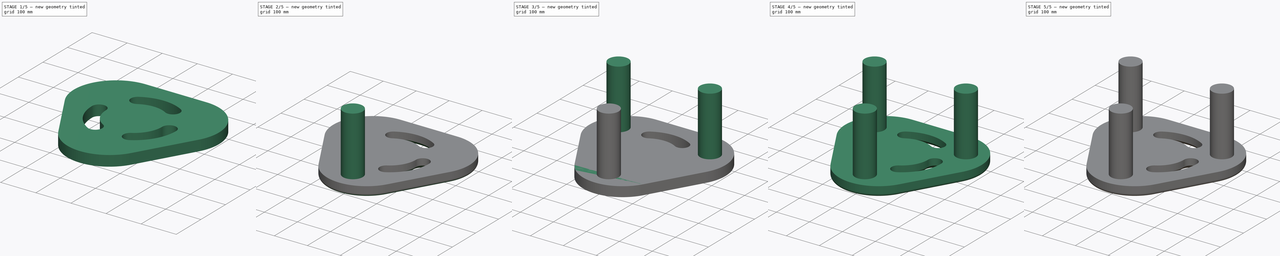
[diagram: build sequence overview — one tinted view per stage of 5, left to right]
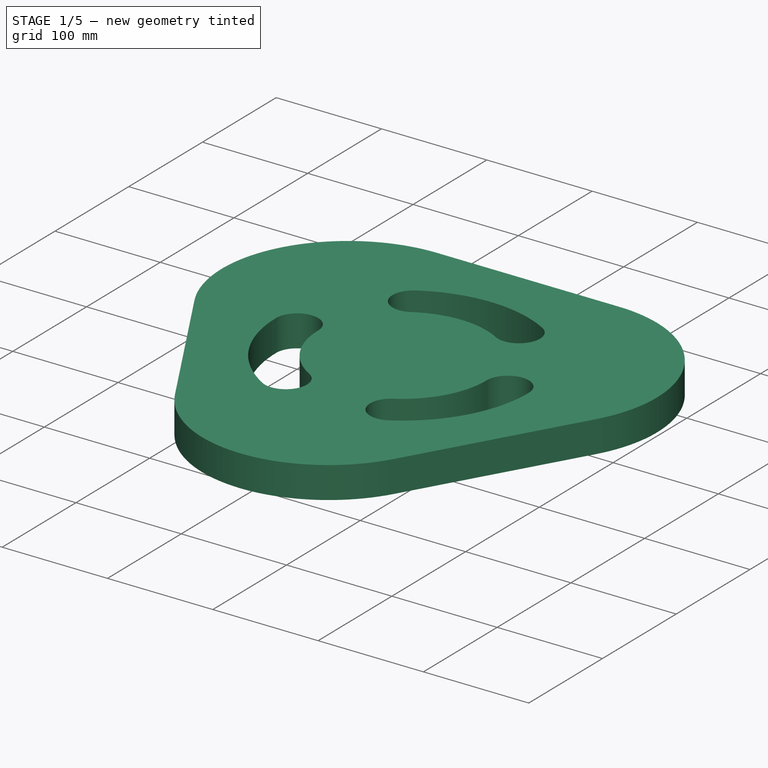
[diagram: stage 1 of 5 — iso view after this stage's code; geometry added in this stage tinted green]
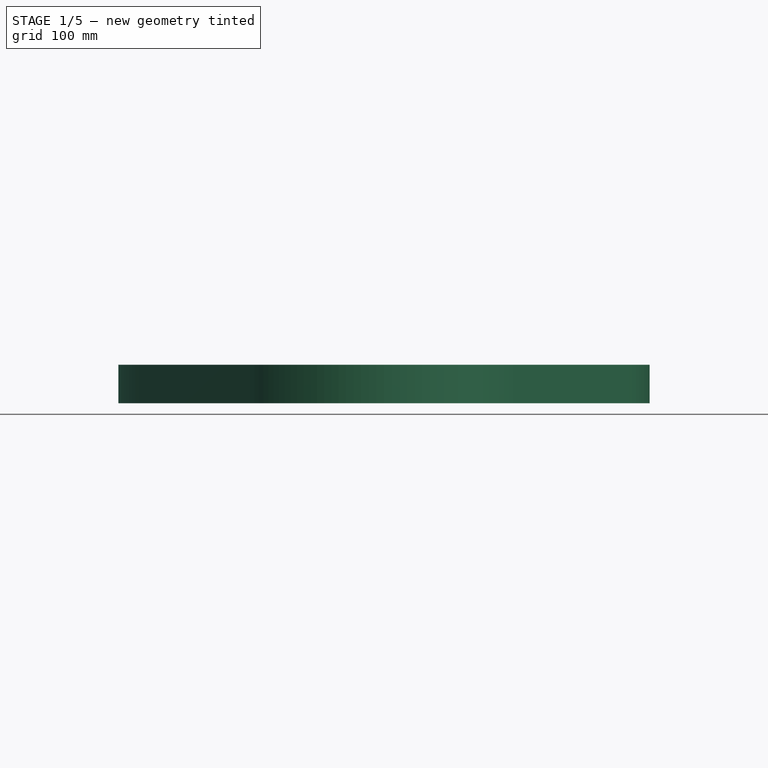
[diagram: stage 1 of 5 — front view after this stage's code; geometry added in this stage tinted green]
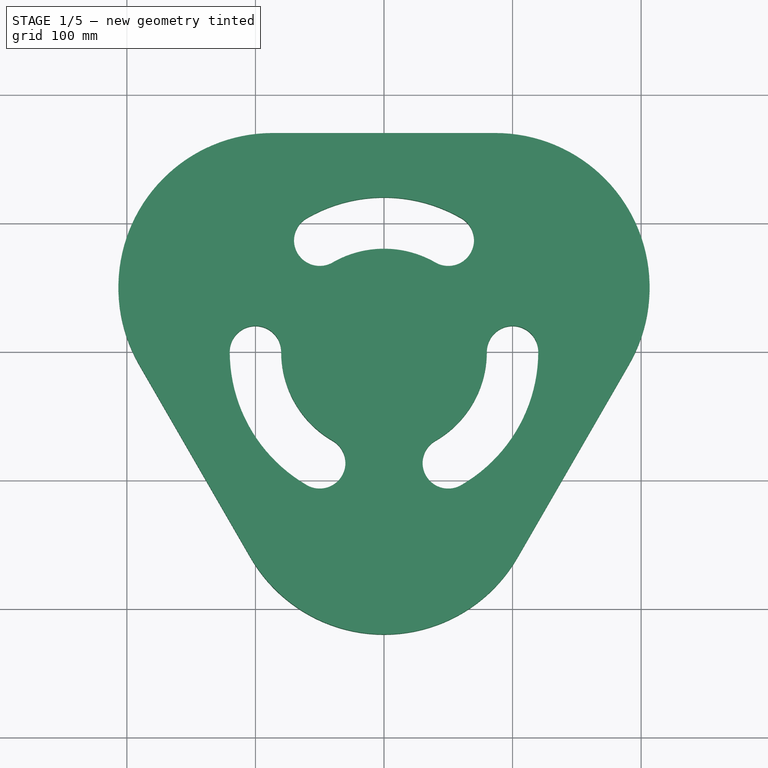
[diagram: stage 1 of 5 — top view after this stage's code; geometry added in this stage tinted green]
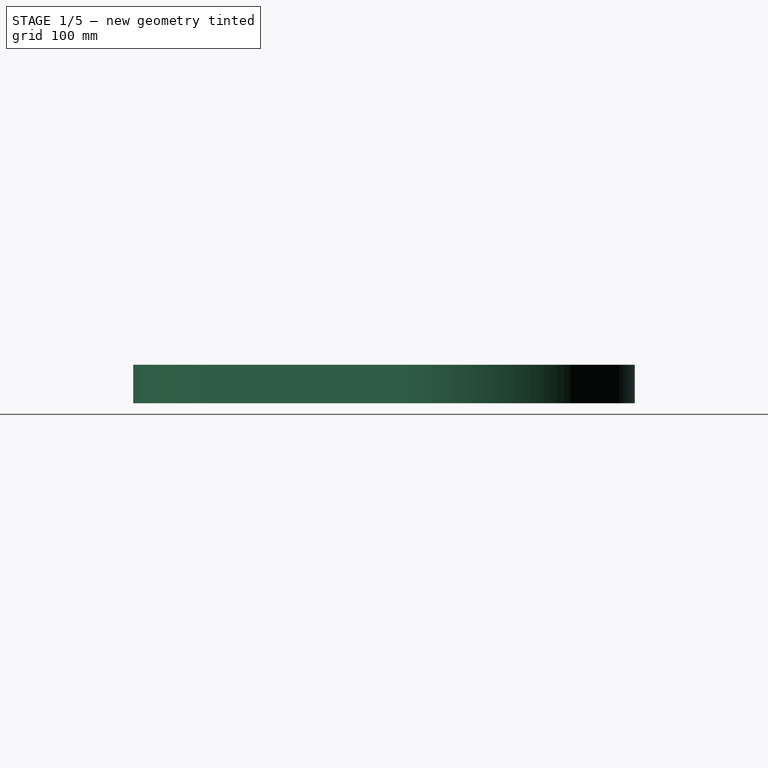
[diagram: stage 1 of 5 — right view after this stage's code; geometry added in this stage tinted green]
FCSTD DOCUMENT  (FreeCAD 0.19R24291 (Git))
Label: round_triangle_demo
License: All rights reserved
LicenseURL: http://en.wikipedia.org/wiki/All_rights_reserved
objects: Sketcher::SketchObject×7, PartDesign::Pad×4, PartDesign::PolarPattern×4, PartDesign::Pocket×3, PartDesign::Fillet×2, PartDesign::Chamfer×2, PartDesign::Body×1
note: 34 computed .brp shape members not serialized (recipe doc carries the construction recipe); baked Part::Feature solids carry a one-line shape summary decoded from their .brp

FEATURE [PartDesign::Body] Body
  Group = -> [Sketch,Pad,Sketch001,Pocket,PolarPattern,Fillet,Chamfer,Sketch002,Pad001,PolarPattern001,Sketch003,Pocket001]
  Origin = -> Origin
  Tip = -> Pocket001
FEATURE [Sketcher::SketchObject] Sketch005
  FullyConstrained = false
  MapMode = 5
  Support = -> [XY_Plane001]
  sketch-geometry (9):
    g0: Circle CenterX=0 CenterY=0 CenterZ=0 NormalX=0 NormalY=0 NormalZ=1 AngleXU=0 Radius=100
    g1: LineSegment StartX=190.526 StartY=-10 StartZ=0 EndX=103.923 EndY=-160 EndZ=0
    g2: LineSegment StartX=-86.6025 StartY=170 StartZ=0 EndX=86.6025 EndY=170 EndZ=0
    g3: LineSegment StartX=-103.923 StartY=-160 StartZ=0 EndX=-190.526 EndY=-10 EndZ=0
    g4: LineSegment StartX=0 StartY=0 StartZ=0 EndX=158.55 EndY=91.5386 EndZ=0
    g5: LineSegment StartX=0 StartY=0 StartZ=0 EndX=-158.55 EndY=91.5386 EndZ=0
    g6: ArcOfCircle CenterX=86.6025 CenterY=50 CenterZ=0 NormalX=0 NormalY=0 NormalZ=1 AngleXU=0 Radius=120 StartAngle=5.75959 EndAngle=7.85398
    g7: ArcOfCircle CenterX=-86.6025 CenterY=50 CenterZ=0 NormalX=0 NormalY=0 NormalZ=1 AngleXU=0 Radius=120 StartAngle=1.5708 EndAngle=3.66519
    g8: ArcOfCircle CenterX=0 CenterY=-100 CenterZ=0 NormalX=0 NormalY=0 NormalZ=1 AngleXU=0 Radius=120 StartAngle=3.66519 EndAngle=5.75959
  constraints (30):
    c: Coincident(g0,g-1)
    c: Radius(g0) = 100
    c: Coincident(g4,g-1)
    c: Coincident(g5,g4)
    c: Angle(g4,g-2) = 1.0472
    c: Angle(g-2,g5) = 1.0472
    c: Equal(g5,g4)
    c: PointOnObject(g6,g0)
    c: PointOnObject(g6,g4)
    c: Angle(g6) = 2.0944
    c: Radius(g6) = 120
    c: Tangent(g2,g6) = 1.5708
    c: Equal(g6,g7)
    c: PointOnObject(g7,g0)
    c: PointOnObject(g7,g5)
    c: Angle(g7) = 2.0944
    c: Coincident(g2,g7)
    c: Coincident(g1,g6)
    c: Coincident(g1,g8)
    c: Coincident(g8,g3)
    c: Coincident(g3,g7)
    c: Angle(g8) = 2.0944
    c: PointOnObject(g8,g-2)
    c: PointOnObject(g8,g0)
    c: Coincident(g6,g2)
    c: Tangent(g7,g2) = 1.5708
    c: Tangent(g8,g1) = 1.5708
    c: Tangent(g8,g3) = 1.5708
    c: Tangent(g3,g7) = 1.5708
    c: Tangent(g1,g6) = 1.5708
FEATURE [PartDesign::Pad] Pad003
  Direction = (1,1,1)
  Length = 30
  Length2 = 100
  Profile = -> Sketch005
  Refine = true
  Type = 0
FEATURE [Sketcher::SketchObject] Sketch004
  FullyConstrained = true
  MapMode = 5
  Placement = pos=(0,0,0) rot=(1,0,0;3.14159rad)
  Support = -> [Pad003]
  sketch-geometry (7):
    g0: Circle CenterX=0 CenterY=0 CenterZ=0 NormalX=0 NormalY=0 NormalZ=1 AngleXU=0 Radius=100
    g1: LineSegment StartX=0 StartY=0 StartZ=0 EndX=60 EndY=-103.923 EndZ=0
    g2: LineSegment StartX=0 StartY=0 StartZ=0 EndX=-60 EndY=-103.923 EndZ=0
    g3: ArcOfCircle CenterX=0 CenterY=0 CenterZ=0 NormalX=0 NormalY=0 NormalZ=1 AngleXU=0 Radius=80 StartAngle=4.18879 EndAngle=5.23599
    g4: ArcOfCircle CenterX=0 CenterY=0 CenterZ=0 NormalX=0 NormalY=0 NormalZ=1 AngleXU=0 Radius=120 StartAngle=4.18879 EndAngle=5.23599
    g5: ArcOfCircle CenterX=-50 CenterY=-86.6025 CenterZ=0 NormalX=0 NormalY=0 NormalZ=1 AngleXU=0 Radius=20 StartAngle=1.0472 EndAngle=4.18879
    g6: ArcOfCircle CenterX=50 CenterY=-86.6025 CenterZ=0 NormalX=0 NormalY=0 NormalZ=1 AngleXU=0 Radius=20 StartAngle=5.23599 EndAngle=8.37758
  constraints (18):
    c: Coincident(g-1,g0)
    c: Radius(g0) = 100
    c: Coincident(g1,g0)
    c: Coincident(g2,g0)
    c: Angle(g1,g-2,g0) = 2.61799
    c: Distance(g1) = 120
    c: Equal(g2,g1)
    c: Angle(g-2,g2) = 2.61799
    c: Tangent(g4,g6) = -1.5708
    c: Tangent(g3,g6) = 1.5708
    c: Tangent(g3,g5) = 1.5708
    c: Tangent(g5,g4) = -1.5708
    c: Coincident(g3,g-1)
    c: Coincident(g4,g3)
    c: Radius(g3) = 80
    c: Radius(g4) = 120
    c: PointOnObject(g4,g2)
    c: PointOnObject(g3,g1)
FEATURE [PartDesign::Pocket] Pocket002
  BaseFeature = -> Pad003
  Length = 20
  Length2 = 100
  Profile = -> Sketch004
  Refine = true
  Type = 1
FEATURE [PartDesign::PolarPattern] PolarPattern002
  Angle = 360
  Axis = -> Sketch004 [N_Axis]
  BaseFeature = -> Pocket002
  Occurrences = 3
  Originals = -> [Pocket002]
  Refine = true
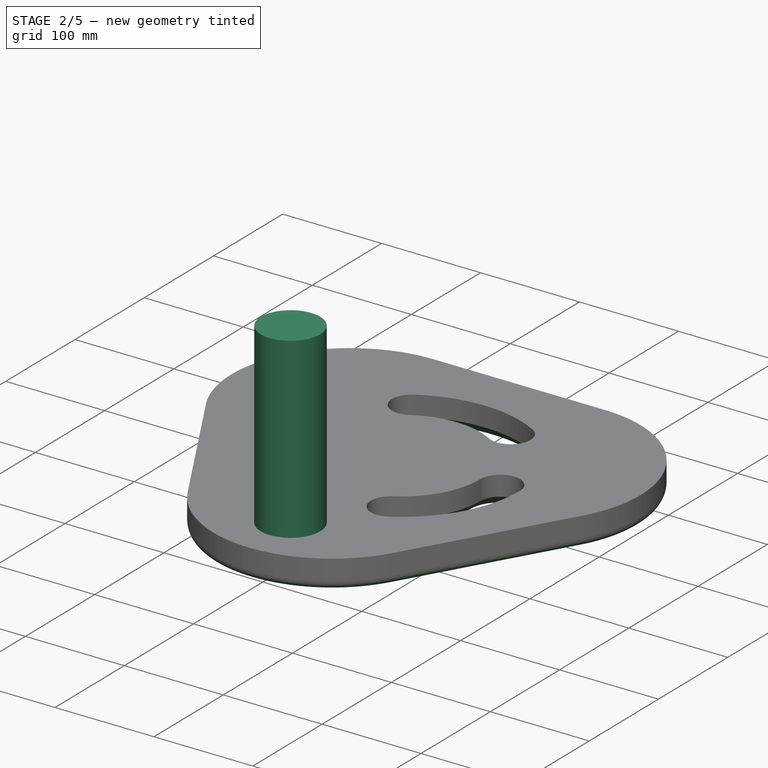
[diagram: stage 2 of 5 — iso view after this stage's code; geometry added in this stage tinted green]
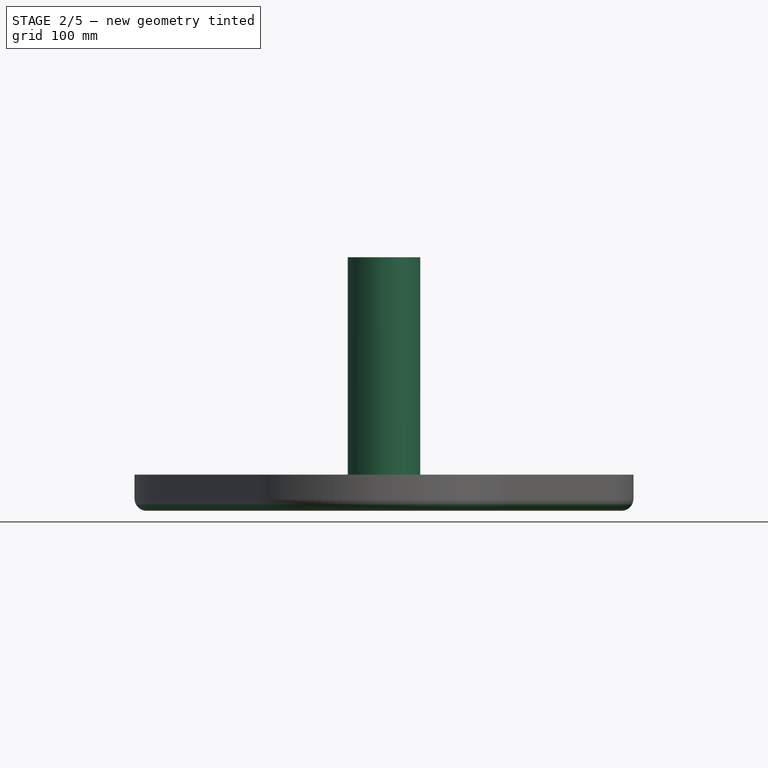
[diagram: stage 2 of 5 — front view after this stage's code; geometry added in this stage tinted green]
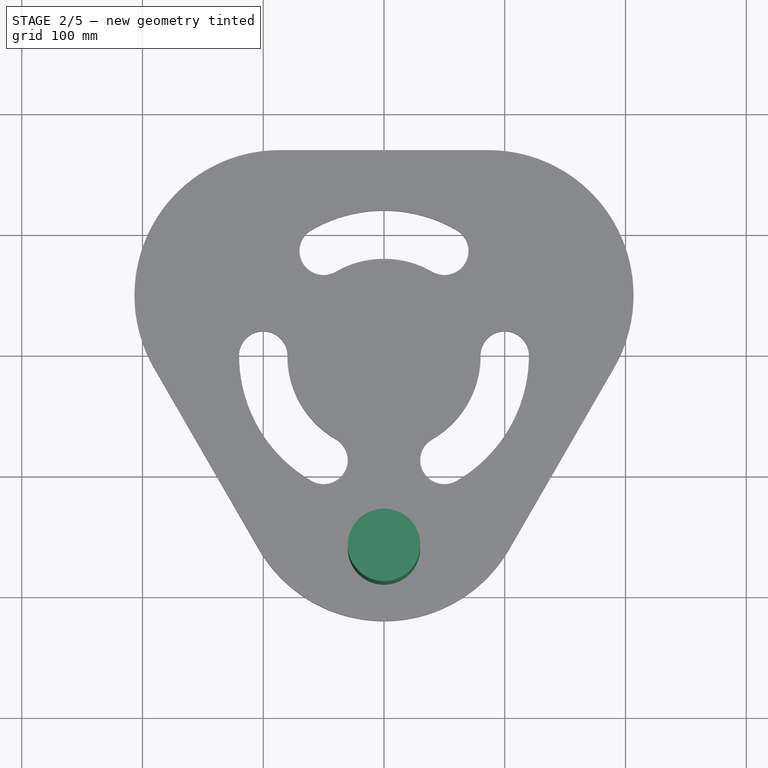
[diagram: stage 2 of 5 — top view after this stage's code; geometry added in this stage tinted green]
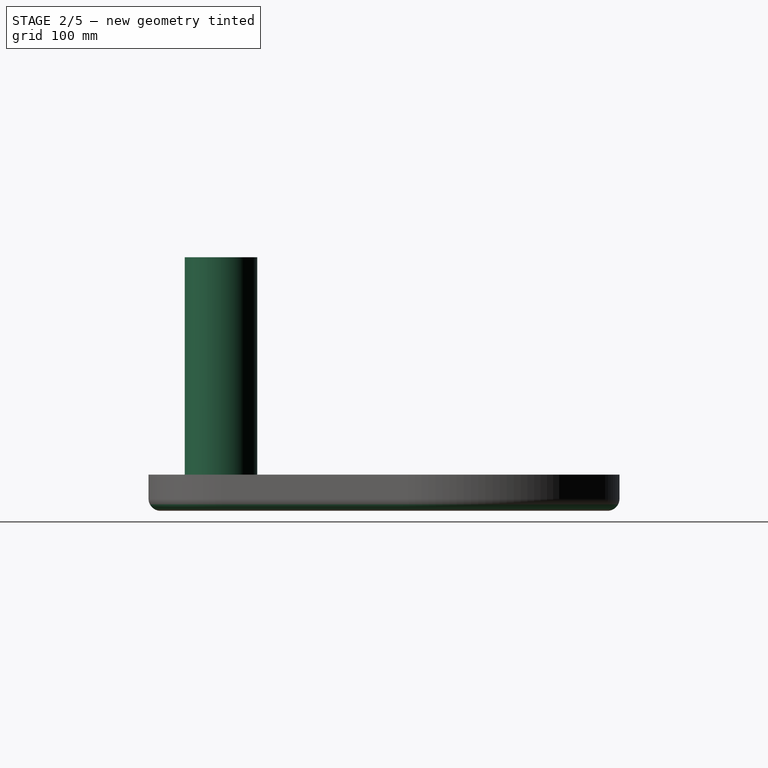
[diagram: stage 2 of 5 — right view after this stage's code; geometry added in this stage tinted green]
FEATURE [PartDesign::Fillet] Fillet001
  Base = -> PolarPattern002 [Edge6,Edge13,Edge9]
  BaseFeature = -> PolarPattern002
  Radius = 10
  Refine = true
  SupportTransform = false
FEATURE [PartDesign::Chamfer] Chamfer001
  Angle = 45
  Base = -> Fillet001 [Edge39,Edge40,Edge47,Edge48,Edge45,Edge43]
  BaseFeature = -> Fillet001
  ChamferType = 0
  FlipDirection = false
  Refine = true
  Size = 10
  Size2 = 1
  SupportTransform = false
FEATURE [Sketcher::SketchObject] Sketch006
  FullyConstrained = true
  MapMode = 5
  Placement = pos=(0,0,30) rot=(0,0,1;0rad)
  Support = -> [Chamfer001]
  sketch-geometry (1):
    g0: Circle CenterX=0 CenterY=-160 CenterZ=0 NormalX=0 NormalY=0 NormalZ=1 AngleXU=0 Radius=30
  constraints (3):
    c: PointOnObject(g0,g-2)
    c: DistanceY(g0,g-1) = 160
    c: Radius(g0) = 30
FEATURE [PartDesign::Pad] Pad002
  BaseFeature = -> Chamfer001
  Direction = (1,1,1)
  Length = 180
  Length2 = 100
  Profile = -> Sketch006
  Refine = true
  Type = 0
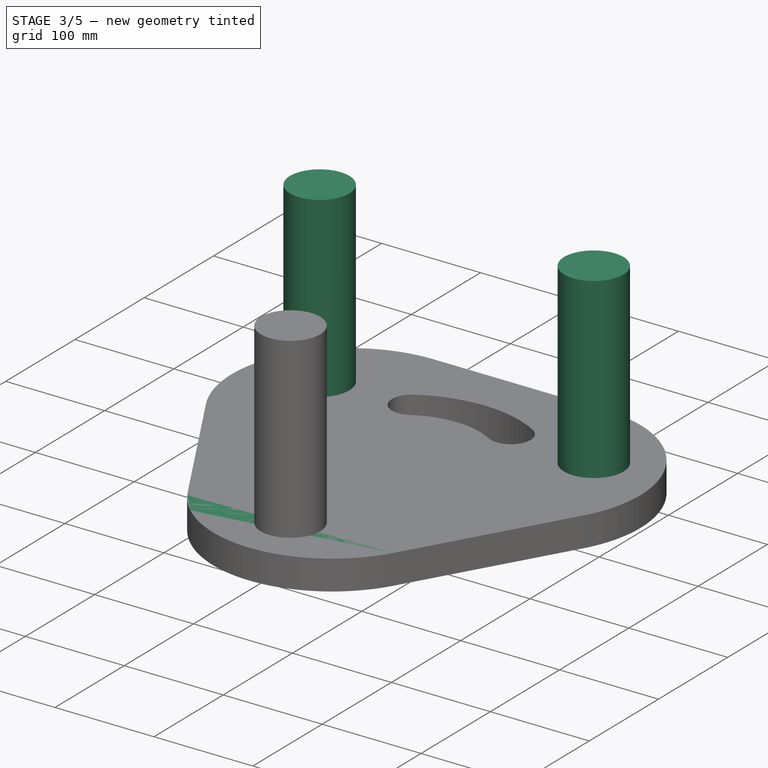
[diagram: stage 3 of 5 — iso view after this stage's code; geometry added in this stage tinted green]
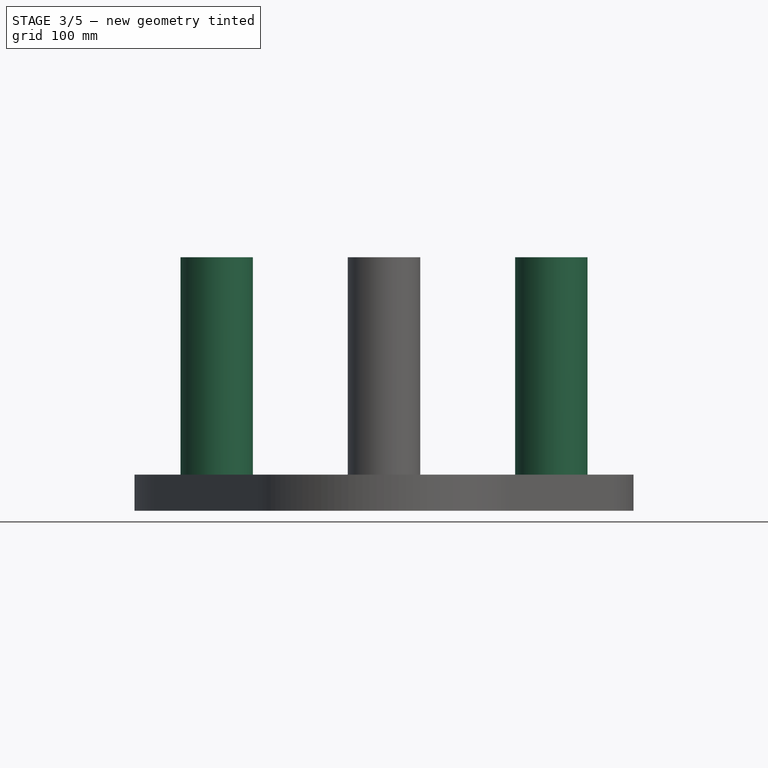
[diagram: stage 3 of 5 — front view after this stage's code; geometry added in this stage tinted green]
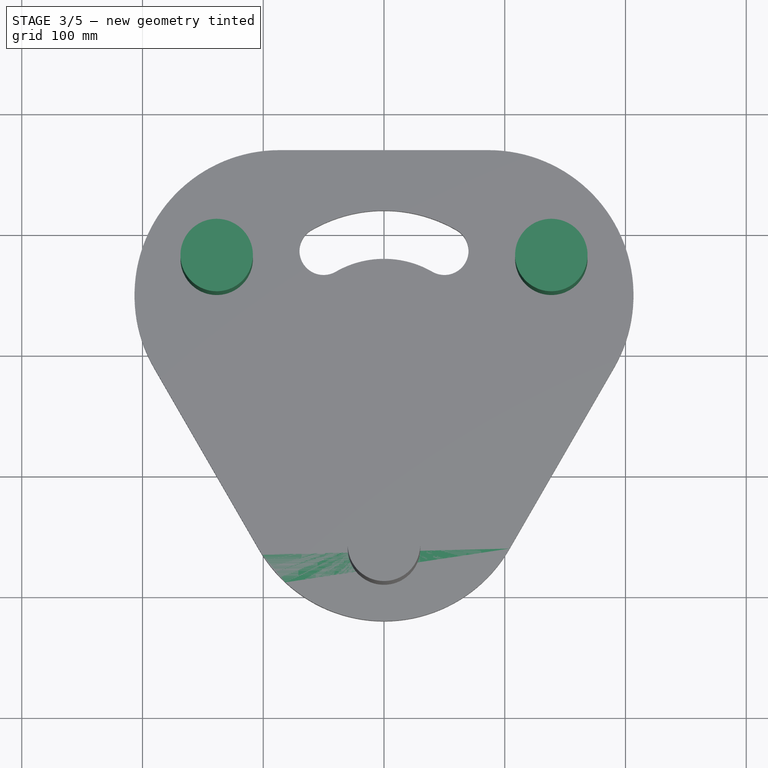
[diagram: stage 3 of 5 — top view after this stage's code; geometry added in this stage tinted green]
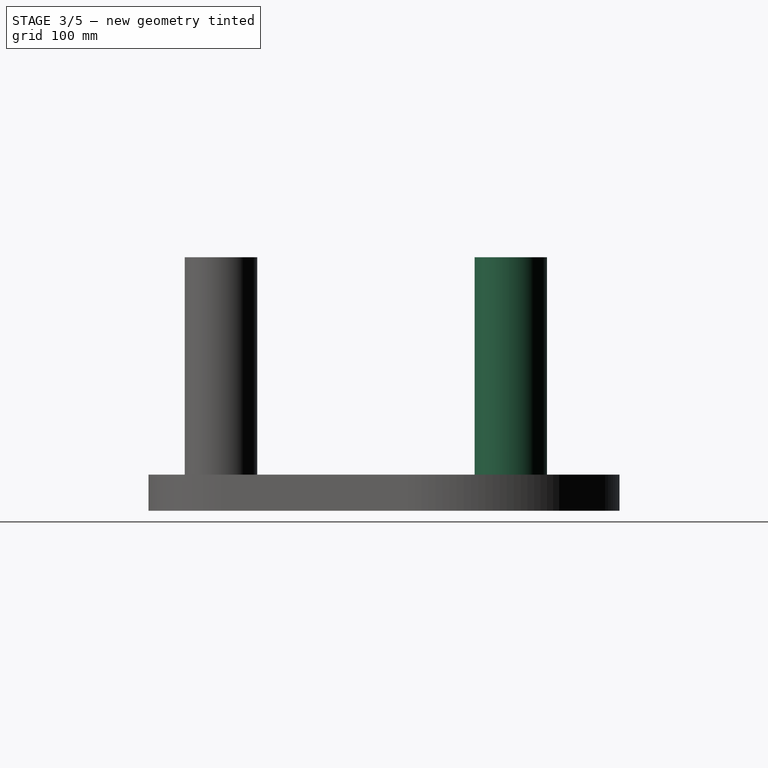
[diagram: stage 3 of 5 — right view after this stage's code; geometry added in this stage tinted green]
FEATURE [Sketcher::SketchObject] Sketch
  FullyConstrained = false
  MapMode = 5
  Support = -> [XY_Plane]
  sketch-geometry (9):
    g0: Circle CenterX=0 CenterY=0 CenterZ=0 NormalX=0 NormalY=0 NormalZ=1 AngleXU=0 Radius=100
    g1: LineSegment StartX=190.526 StartY=-10 StartZ=0 EndX=103.923 EndY=-160 EndZ=0
    g2: LineSegment StartX=-86.6025 StartY=170 StartZ=0 EndX=86.6025 EndY=170 EndZ=0
    g3: LineSegment StartX=-103.923 StartY=-160 StartZ=0 EndX=-190.526 EndY=-10 EndZ=0
    g4: LineSegment StartX=0 StartY=0 StartZ=0 EndX=158.55 EndY=91.5386 EndZ=0
    g5: LineSegment StartX=0 StartY=0 StartZ=0 EndX=-158.55 EndY=91.5386 EndZ=0
    g6: ArcOfCircle CenterX=86.6025 CenterY=50 CenterZ=0 NormalX=0 NormalY=0 NormalZ=1 AngleXU=0 Radius=120 StartAngle=5.75959 EndAngle=7.85398
    g7: ArcOfCircle CenterX=-86.6025 CenterY=50 CenterZ=0 NormalX=0 NormalY=0 NormalZ=1 AngleXU=0 Radius=120 StartAngle=1.5708 EndAngle=3.66519
    g8: ArcOfCircle CenterX=0 CenterY=-100 CenterZ=0 NormalX=0 NormalY=0 NormalZ=1 AngleXU=0 Radius=120 StartAngle=3.66519 EndAngle=5.75959
  constraints (30):
    c: Coincident(g0,g-1)
    c: Radius(g0) = 100
    c: Coincident(g4,g-1)
    c: Coincident(g5,g4)
    c: Angle(g4,g-2) = 1.0472
    c: Angle(g-2,g5) = 1.0472
    c: Equal(g5,g4)
    c: PointOnObject(g6,g0)
    c: PointOnObject(g6,g4)
    c: Angle(g6) = 2.0944
    c: Radius(g6) = 120
    c: Tangent(g2,g6) = 1.5708
    c: Equal(g6,g7)
    c: PointOnObject(g7,g0)
    c: PointOnObject(g7,g5)
    c: Angle(g7) = 2.0944
    c: Coincident(g2,g7)
    c: Coincident(g1,g6)
    c: Coincident(g1,g8)
    c: Coincident(g8,g3)
    c: Coincident(g3,g7)
    c: Angle(g8) = 2.0944
    c: PointOnObject(g8,g-2)
    c: PointOnObject(g8,g0)
    c: Coincident(g6,g2)
    c: Tangent(g7,g2) = 1.5708
    c: Tangent(g8,g1) = 1.5708
    c: Tangent(g8,g3) = 1.5708
    c: Tangent(g3,g7) = 1.5708
    c: Tangent(g1,g6) = 1.5708
FEATURE [PartDesign::Pad] Pad
  Direction = (1,1,1)
  Length = 30
  Length2 = 100
  Profile = -> Sketch
  Refine = true
  Type = 0
FEATURE [Sketcher::SketchObject] Sketch001
  FullyConstrained = true
  MapMode = 5
  Placement = pos=(0,0,0) rot=(1,0,0;3.14159rad)
  Support = -> [Pad]
  sketch-geometry (7):
    g0: Circle CenterX=0 CenterY=0 CenterZ=0 NormalX=0 NormalY=0 NormalZ=1 AngleXU=0 Radius=100
    g1: LineSegment StartX=0 StartY=0 StartZ=0 EndX=60 EndY=-103.923 EndZ=0
    g2: LineSegment StartX=0 StartY=0 StartZ=0 EndX=-60 EndY=-103.923 EndZ=0
    g3: ArcOfCircle CenterX=0 CenterY=0 CenterZ=0 NormalX=0 NormalY=0 NormalZ=1 AngleXU=0 Radius=80 StartAngle=4.18879 EndAngle=5.23599
    g4: ArcOfCircle CenterX=0 CenterY=0 CenterZ=0 NormalX=0 NormalY=0 NormalZ=1 AngleXU=0 Radius=120 StartAngle=4.18879 EndAngle=5.23599
    g5: ArcOfCircle CenterX=-50 CenterY=-86.6025 CenterZ=0 NormalX=0 NormalY=0 NormalZ=1 AngleXU=0 Radius=20 StartAngle=1.0472 EndAngle=4.18879
    g6: ArcOfCircle CenterX=50 CenterY=-86.6025 CenterZ=0 NormalX=0 NormalY=0 NormalZ=1 AngleXU=0 Radius=20 StartAngle=5.23599 EndAngle=8.37758
  constraints (18):
    c: Coincident(g-1,g0)
    c: Radius(g0) = 100
    c: Coincident(g1,g0)
    c: Coincident(g2,g0)
    c: Angle(g1,g-2,g0) = 2.61799
    c: Distance(g1) = 120
    c: Equal(g2,g1)
    c: Angle(g-2,g2) = 2.61799
    c: Tangent(g4,g6) = -1.5708
    c: Tangent(g3,g6) = 1.5708
    c: Tangent(g3,g5) = 1.5708
    c: Tangent(g5,g4) = -1.5708
    c: Coincident(g3,g-1)
    c: Coincident(g4,g3)
    c: Radius(g3) = 80
    c: Radius(g4) = 120
    c: PointOnObject(g4,g2)
    c: PointOnObject(g3,g1)
FEATURE [PartDesign::Pocket] Pocket
  BaseFeature = -> Pad
  Length = 20
  Length2 = 100
  Profile = -> Sketch001
  Refine = true
  Type = 1
FEATURE [PartDesign::PolarPattern] PolarPattern003
  Angle = 360
  Axis = -> Sketch006 [N_Axis]
  BaseFeature = -> Pad002
  Occurrences = 3
  Originals = -> [Pad002]
  Refine = true
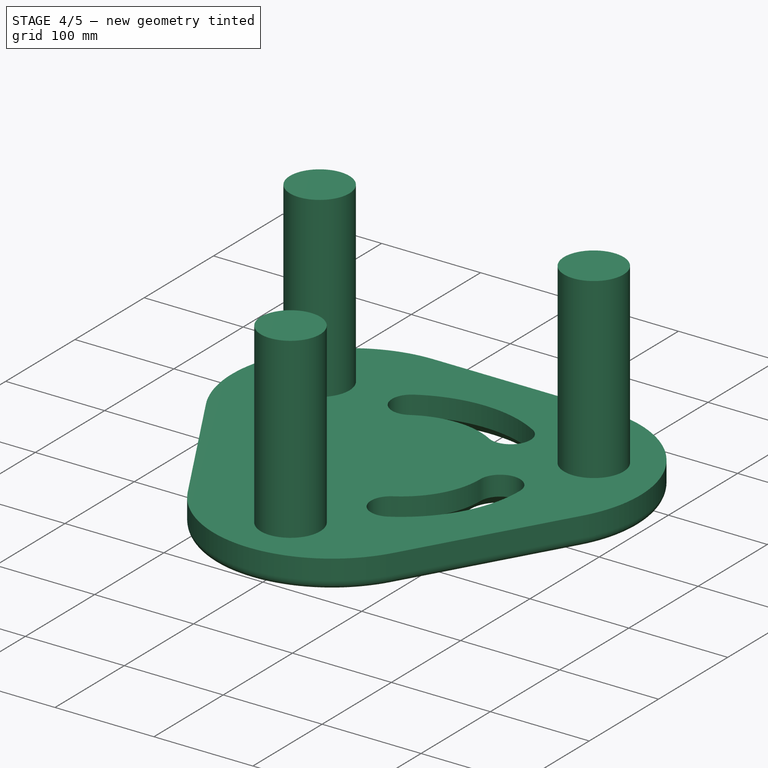
[diagram: stage 4 of 5 — iso view after this stage's code; geometry added in this stage tinted green]
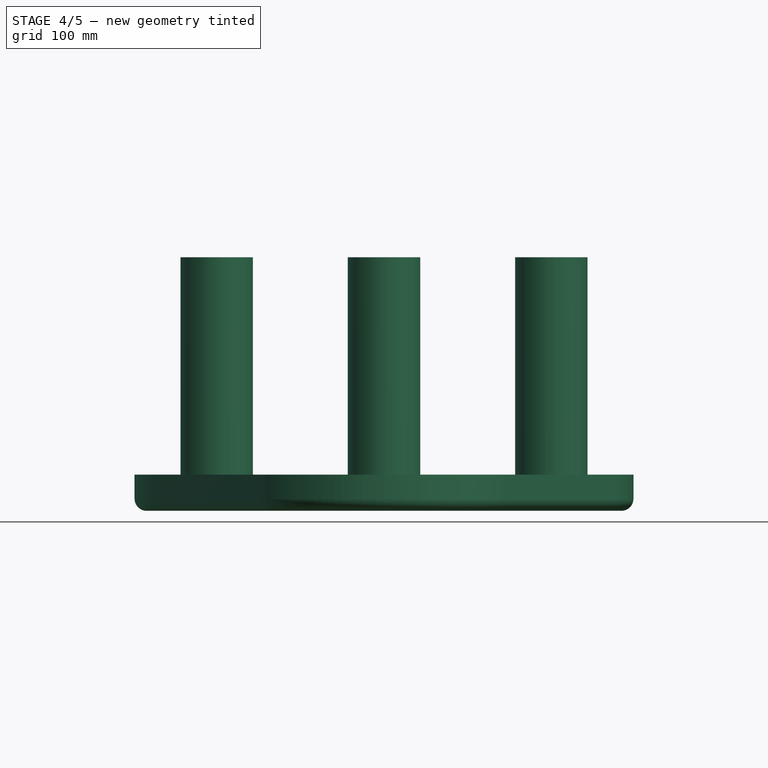
[diagram: stage 4 of 5 — front view after this stage's code; geometry added in this stage tinted green]
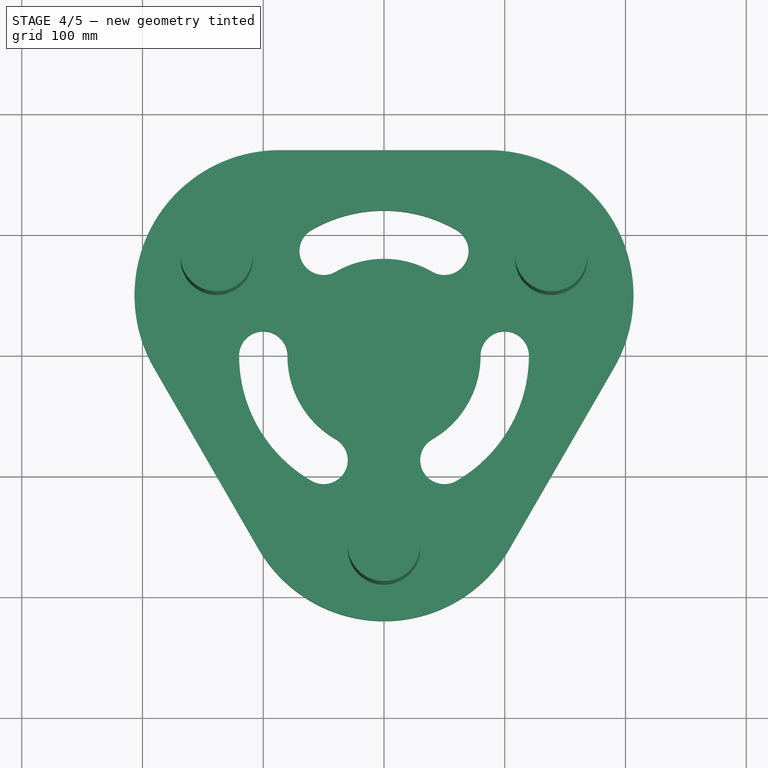
[diagram: stage 4 of 5 — top view after this stage's code; geometry added in this stage tinted green]
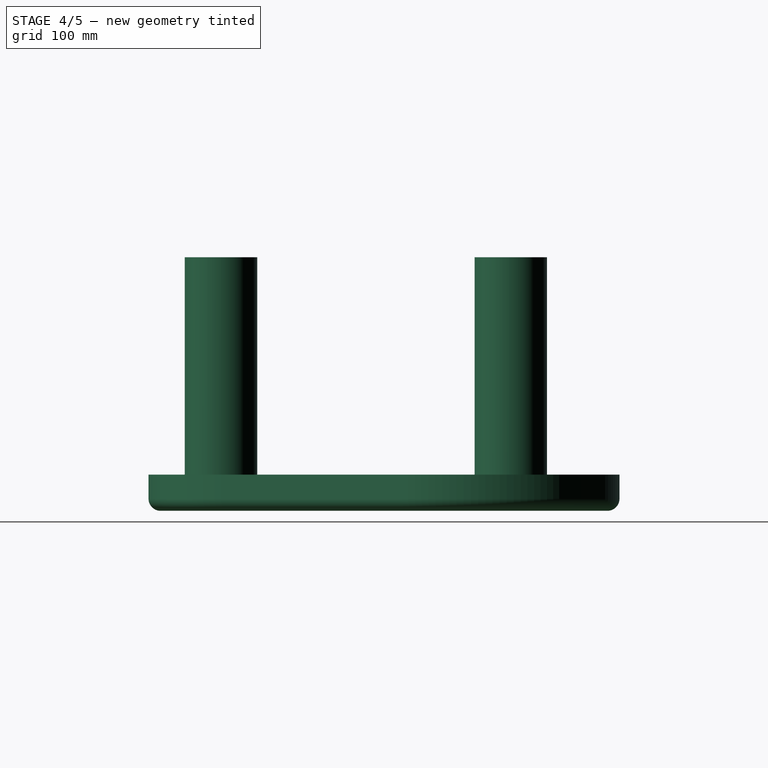
[diagram: stage 4 of 5 — right view after this stage's code; geometry added in this stage tinted green]
FEATURE [PartDesign::PolarPattern] PolarPattern
  Angle = 360
  Axis = -> Sketch001 [N_Axis]
  BaseFeature = -> Pocket
  Occurrences = 3
  Originals = -> [Pocket]
  Refine = true
FEATURE [PartDesign::Fillet] Fillet
  Base = -> PolarPattern [Edge6,Edge13,Edge9]
  BaseFeature = -> PolarPattern
  Radius = 10
  Refine = true
  SupportTransform = false
FEATURE [PartDesign::Chamfer] Chamfer
  Angle = 45
  Base = -> Fillet [Edge39,Edge40,Edge47,Edge48,Edge45,Edge43]
  BaseFeature = -> Fillet
  ChamferType = 0
  FlipDirection = false
  Refine = true
  Size = 10
  Size2 = 1
  SupportTransform = false
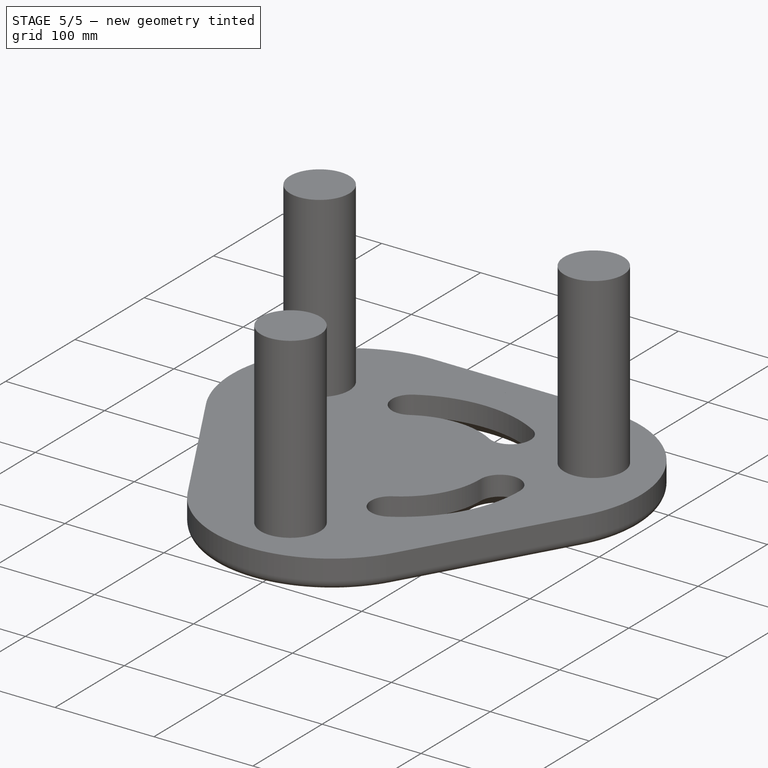
[diagram: stage 5 of 5 — iso view after this stage's code; geometry added in this stage tinted green]
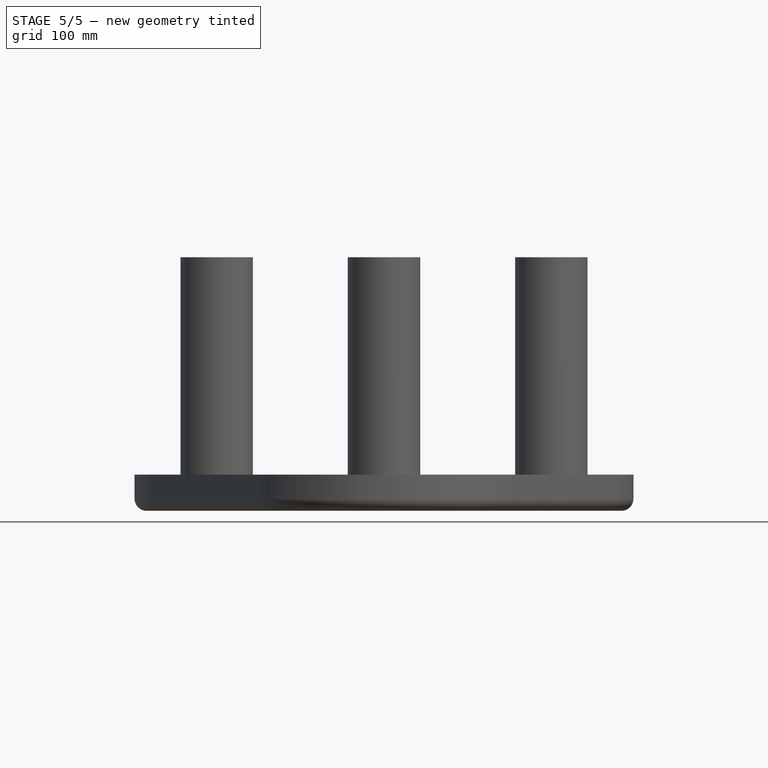
[diagram: stage 5 of 5 — front view after this stage's code; geometry added in this stage tinted green]
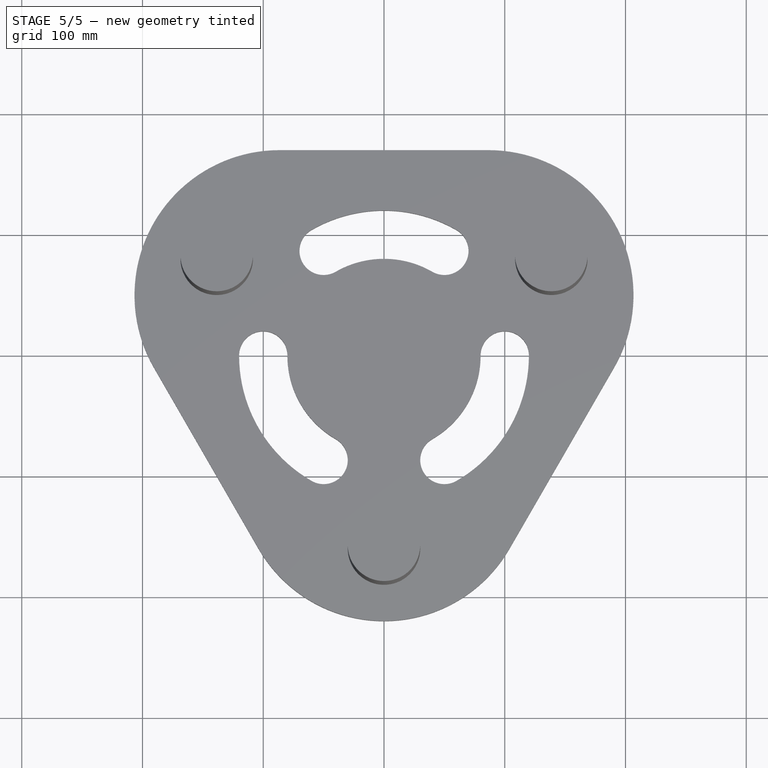
[diagram: stage 5 of 5 — top view after this stage's code; geometry added in this stage tinted green]
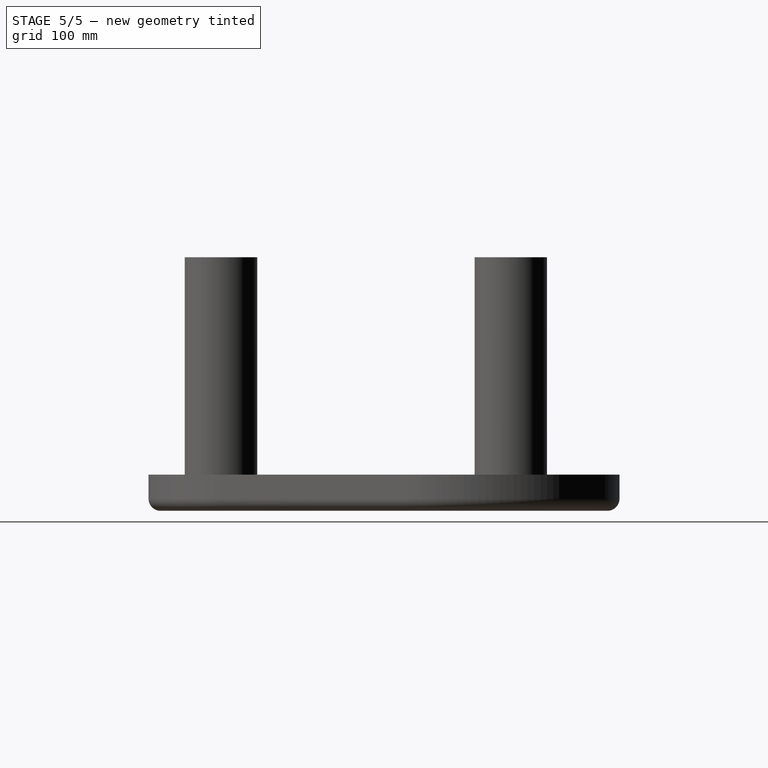
[diagram: stage 5 of 5 — right view after this stage's code; geometry added in this stage tinted green]
FEATURE [Sketcher::SketchObject] Sketch002
  FullyConstrained = true
  MapMode = 5
  Placement = pos=(0,0,30) rot=(0,0,1;0rad)
  Support = -> [Chamfer]
  sketch-geometry (1):
    g0: Circle CenterX=0 CenterY=-160 CenterZ=0 NormalX=0 NormalY=0 NormalZ=1 AngleXU=0 Radius=30
  constraints (3):
    c: PointOnObject(g0,g-2)
    c: DistanceY(g0,g-1) = 160
    c: Radius(g0) = 30
FEATURE [PartDesign::Pad] Pad001
  BaseFeature = -> Chamfer
  Direction = (1,1,1)
  Length = 180
  Length2 = 100
  Profile = -> Sketch002
  Refine = true
  Type = 0
FEATURE [PartDesign::PolarPattern] PolarPattern001
  Angle = 360
  Axis = -> Sketch002 [N_Axis]
  BaseFeature = -> Pad001
  Occurrences = 3
  Originals = -> [Pad001]
  Refine = true
FEATURE [Sketcher::SketchObject] Sketch003
  FullyConstrained = false
  MapMode = 5
  Placement = pos=(0,0,0) rot=(1,0,0;3.14159rad)
  Support = -> [PolarPattern001]
  sketch-geometry (3):
    g0: LineSegment StartX=0 StartY=0 StartZ=0 EndX=382.591 EndY=71.9233 EndZ=0
    g1: LineSegment StartX=382.591 StartY=71.9233 StartZ=0 EndX=0 EndY=-354.096 EndZ=0
    g2: LineSegment StartX=0 StartY=-354.096 StartZ=0 EndX=0 EndY=0 EndZ=0
  constraints (5):
    c: Vertical(g2)
    c: Coincident(g0,g2)
    c: Coincident(g0,g-1)
    c: Coincident(g0,g1)
    c: Coincident(g2,g1)
FEATURE [PartDesign::Pocket] Pocket001
  BaseFeature = -> PolarPattern001
  Length = 5
  Length2 = 100
  Profile = -> Sketch003
  Refine = true
  Type = 1
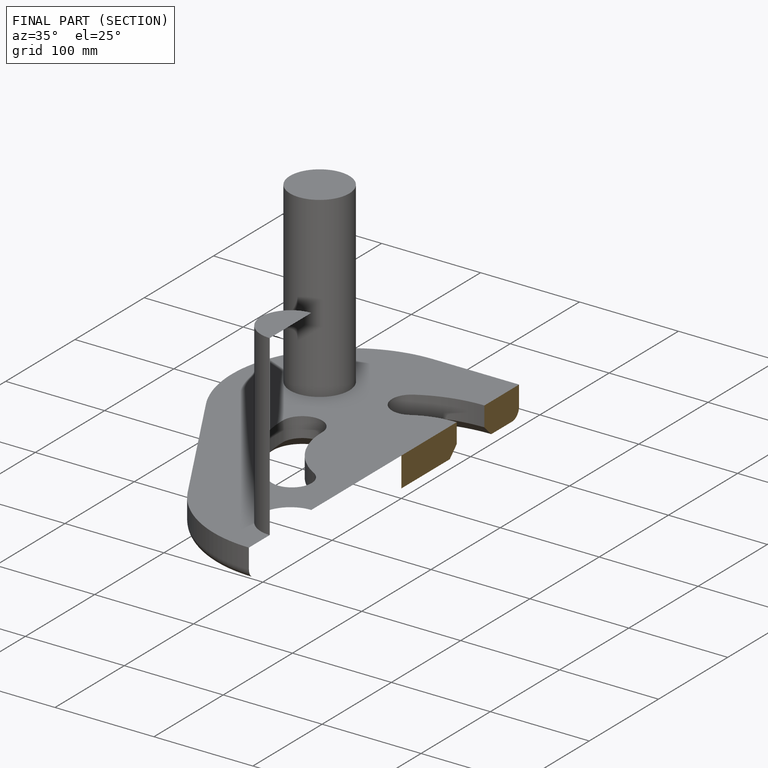
[diagram: finished part — half-section view (interior)]
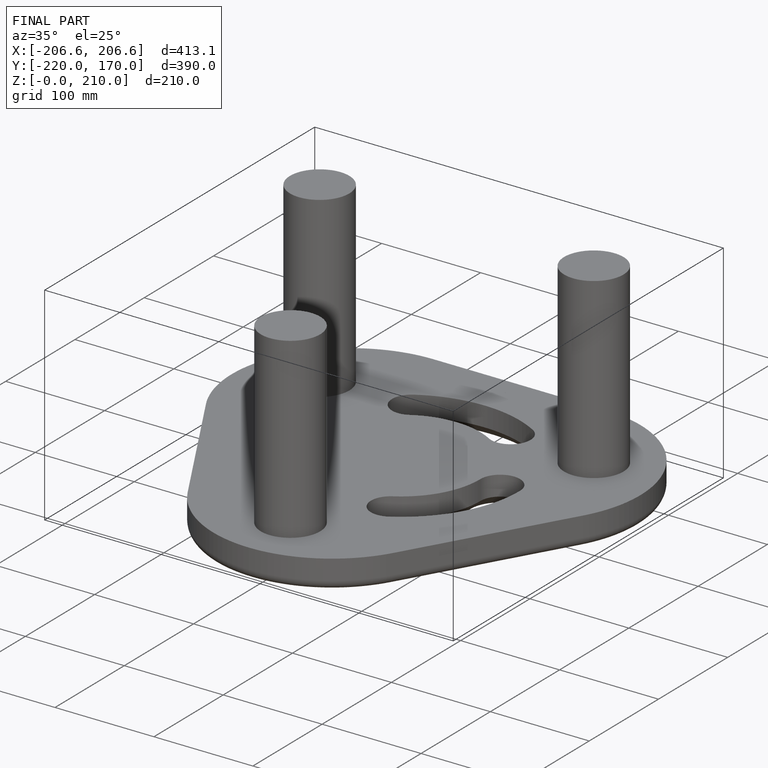
[diagram: finished part — iso view with bounding-box wireframe]
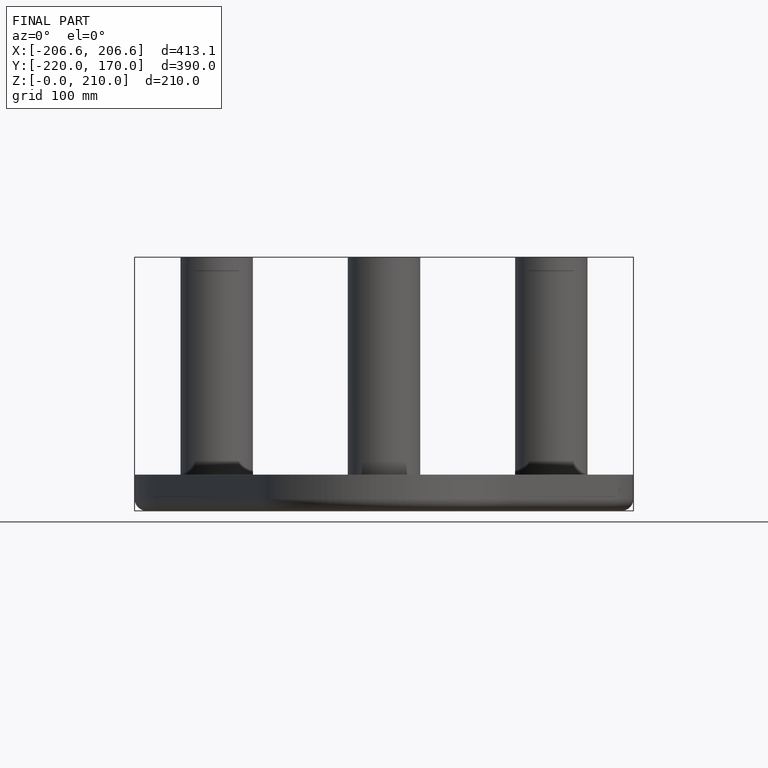
[diagram: finished part — front view with bounding-box wireframe]
